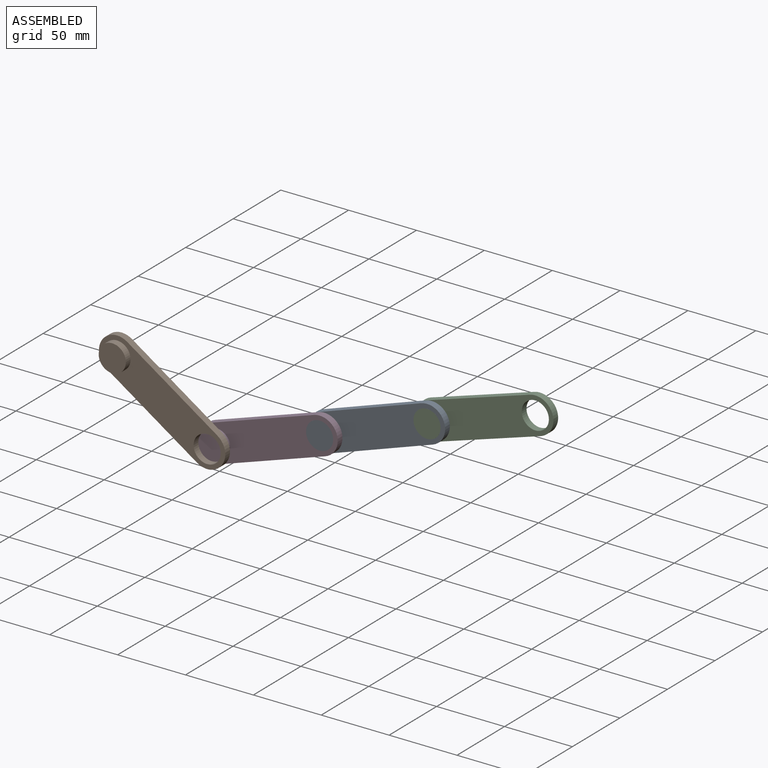
[diagram: assembled view]
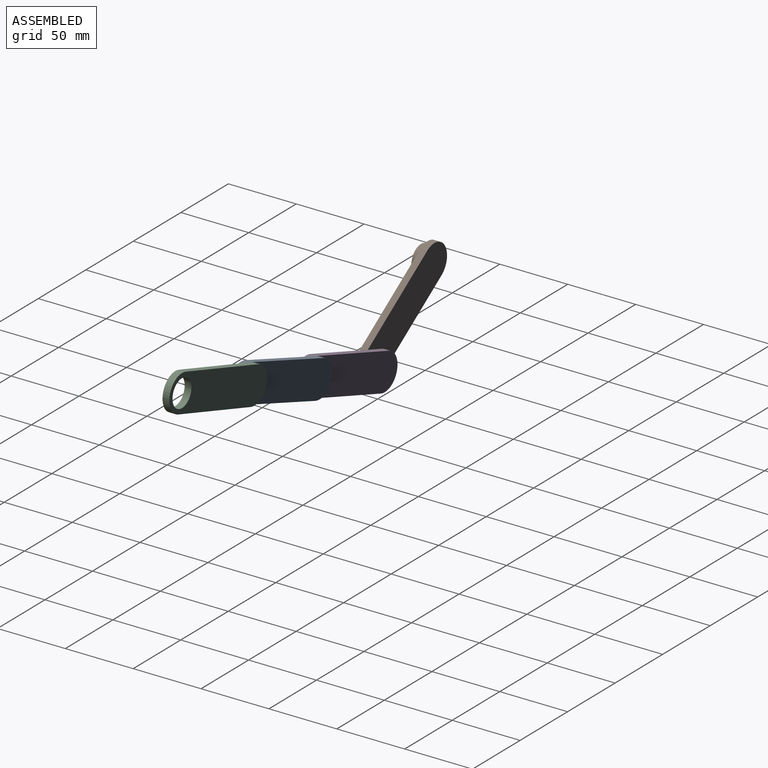
[diagram: assembled view, second angle]
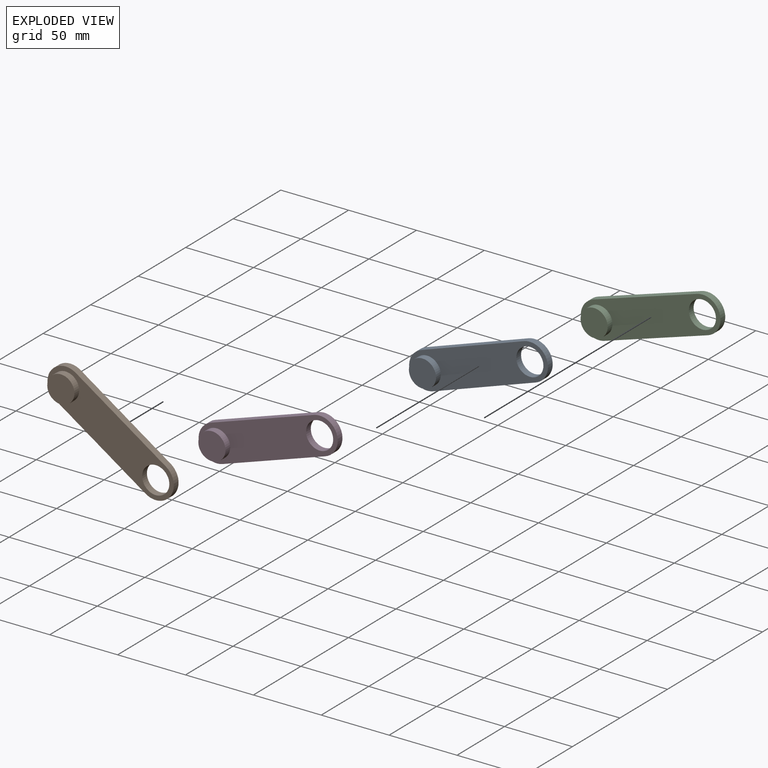
[diagram: exploded view]
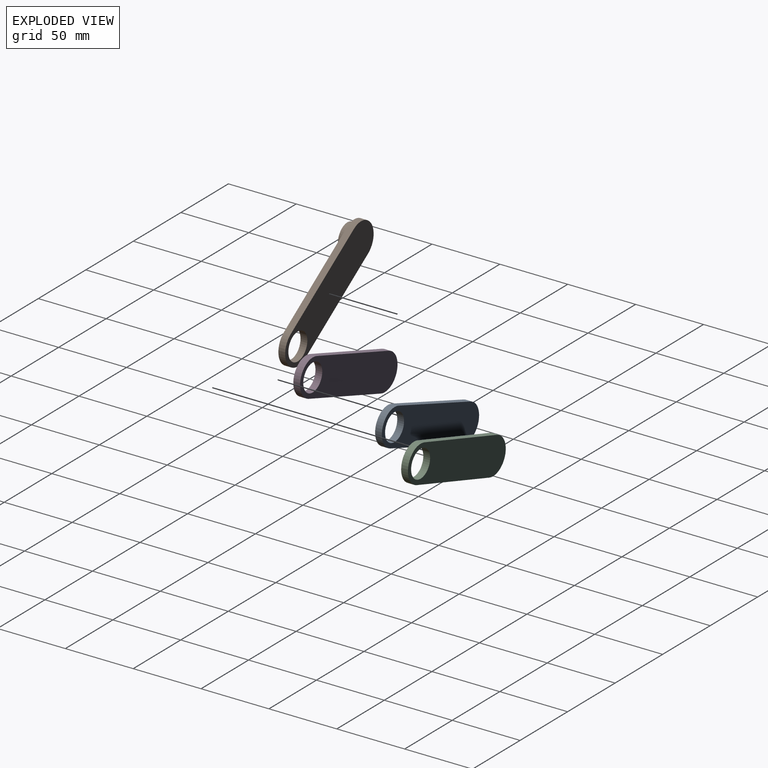
[diagram: exploded view, second angle]
ASSEMBLY  parts=4 mates=3
PART A: 9 faces, bbox 106.7x10x26.7 mm
  f0: plane 80x5mm, normal (0,0,-1), area 400mm2, adj f1,f3,f4,f5
  f1: cylinder r=13.33mm len=26.67mm, axis (0,1,0), area 209.4mm2, adj f0,f2,f4,f5
  f2: plane 80x5mm, normal (0,0,1), area 400mm2, adj f1,f3,f4,f5
  f3: cylinder r=13.33mm len=26.67mm, axis (0,1,0), area 209.4mm2, adj f0,f2,f4,f5
  f4: plane 106.67x26.67mm, normal (0,-1,0), area 2063.5mm2, adj f0,f1,f2,f3,f6,f8
  f5: plane 106.67x26.67mm, normal (0,1,0), area 2377.7mm2, adj f0,f1,f2,f3,f8
  f6: cylinder r=10mm len=20mm, axis (0,1,0), area 314.2mm2, adj f4,f7
  f7: plane 20x20mm, normal (0,-1,0), area 314.2mm2, adj f6
  f8: cylinder r=10mm len=20mm, axis (0,-1,0), area 314.2mm2, adj f4,f5
PART B: same geometry as A
PART C: same geometry as A
PART D: same geometry as A
PLACE A rot(axis=(0,-1,0),19.1deg) t=(12.1,59.25,67.26)mm
PLACE B rot(axis=(0,1,0),33.9deg) t=(-134.76,44.25,51.05)mm
PLACE C rot(axis=(0,-1,0),17.6deg) t=(88.04,64.25,92.38)mm
PLACE D rot(axis=(0,-1,0),18.6deg) t=(-63.63,54.25,41.47)mm
MATE revolute A.f6 <-> D.f8  axis (0,-1,0) through (-25.71,49.25,54.2)mm
MATE revolute C.f6 <-> A.f8  axis (0,-1,0) through (49.9,54.25,80.31)mm
MATE revolute D.f6 <-> B.f8  axis (0,-1,0) through (-101.56,44.25,28.75)mm
